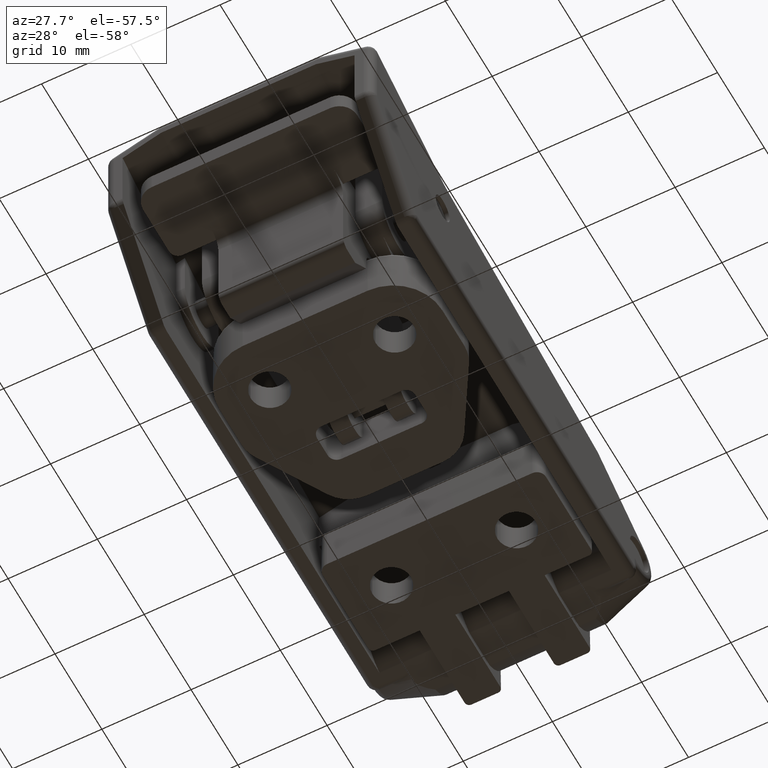
[diagram: clean part render]
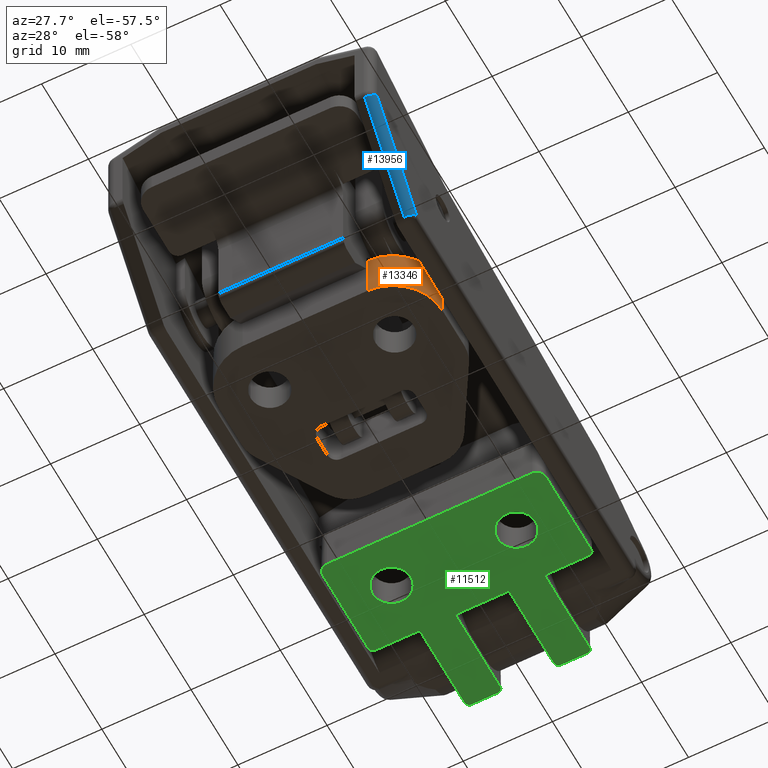
[diagram: same view with three faces highlighted in distinct colors, each labeled with its STEP entity id]
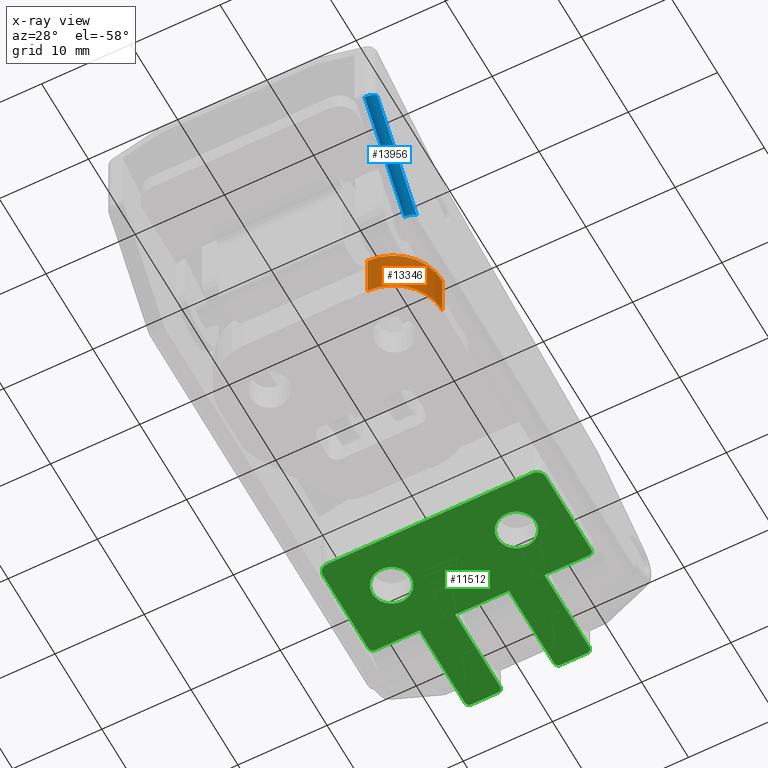
[diagram: x-ray of the same camera — body ghosted, the three highlighted faces saturated]
A machine part, auxiliary view with three faces highlighted in distinct colors.
The next image is the same camera in x-ray (body ghosted, the three faces saturated) — at least one of them is partly hidden behind the body in this view.
Their STEP definitions:

[orange] entity #13346 — the highlighted cylindrical surface (partial cylindrical patch) has radius 5.5 mm, axis along (0, 0, -1).
#119 = EDGE_CURVE ( 'NONE', #14050, #6010, #10177, .T. ) ;
#571 = CARTESIAN_POINT ( 'NONE',  ( 12.50000000000000000, -0.3000000000000103100, 5.500000000000000000 ) ) ;
#686 = VERTEX_POINT ( 'NONE', #571 ) ;
#701 = ORIENTED_EDGE ( 'NONE', *, *, #984, .F. ) ;
#984 = EDGE_CURVE ( 'NONE', #686, #6672, #5620, .T. ) ;
#1578 = DIRECTION ( 'NONE',  ( 0.0000000000000000000, 0.0000000000000000000, -1.000000000000000000 ) ) ;
#1637 = ORIENTED_EDGE ( 'NONE', *, *, #119, .F. ) ;
#1953 = DIRECTION ( 'NONE',  ( 0.0000000000000000000, -0.0000000000000000000, -1.000000000000000000 ) ) ;
#3030 = VECTOR ( 'NONE', #12783, 1000.000000000000000 ) ;
#3459 = AXIS2_PLACEMENT_3D ( 'NONE', #8492, #1953, #9587 ) ;
#3474 = DIRECTION ( 'NONE',  ( 0.0000000000000000000, -0.0000000000000000000, -1.000000000000000000 ) ) ;
#3886 = CIRCLE ( 'NONE', #3459, 5.500000000000000000 ) ;
#4950 = CARTESIAN_POINT ( 'NONE',  ( 7.000000000000000900, -0.3000000000000085900, 6.000000000000000000 ) ) ;
#5620 = LINE ( 'NONE', #10553, #3030 ) ;
#6010 = VERTEX_POINT ( 'NONE', #10549 ) ;
#6672 = VERTEX_POINT ( 'NONE', #12244 ) ;
#6880 = CYLINDRICAL_SURFACE ( 'NONE', #9129, 5.500000000000000000 ) ;
#7280 = VECTOR ( 'NONE', #11941, 1000.000000000000000 ) ;
#7551 = EDGE_CURVE ( 'NONE', #686, #6010, #3886, .T. ) ;
#8492 = CARTESIAN_POINT ( 'NONE',  ( 7.000000000000000900, -0.3000000000000085900, 5.500000000000000000 ) ) ;
#8782 = AXIS2_PLACEMENT_3D ( 'NONE', #10013, #3474, #11130 ) ;
#8966 = CARTESIAN_POINT ( 'NONE',  ( 6.999999999999993800, -5.800000000000008700, 0.0000000000000000000 ) ) ;
#9036 = EDGE_LOOP ( 'NONE', ( #701, #14033, #1637, #12879 ) ) ;
#9129 = AXIS2_PLACEMENT_3D ( 'NONE', #4950, #1578, #12606 ) ;
#9587 = DIRECTION ( 'NONE',  ( 1.000000000000000000, 0.0000000000000000000, 0.0000000000000000000 ) ) ;
#9708 = CARTESIAN_POINT ( 'NONE',  ( 7.000000000000000900, -5.800000000000008700, 6.000000000000000000 ) ) ;
#10013 = CARTESIAN_POINT ( 'NONE',  ( 7.000000000000000900, -0.3000000000000085900, 0.0000000000000000000 ) ) ;
#10177 = LINE ( 'NONE', #9708, #7280 ) ;
#10549 = CARTESIAN_POINT ( 'NONE',  ( 7.000000000000000900, -5.800000000000008700, 5.500000000000000000 ) ) ;
#10553 = CARTESIAN_POINT ( 'NONE',  ( 12.50000000000000000, -0.3000000000000103100, 6.000000000000000000 ) ) ;
#11130 = DIRECTION ( 'NONE',  ( 1.000000000000000000, 0.0000000000000000000, 0.0000000000000000000 ) ) ;
#11941 = DIRECTION ( 'NONE',  ( -0.0000000000000000000, -0.0000000000000000000, 1.000000000000000000 ) ) ;
#12156 = EDGE_CURVE ( 'NONE', #6672, #14050, #13791, .T. ) ;
#12244 = CARTESIAN_POINT ( 'NONE',  ( 12.50000000000000000, -0.3000000000000103100, 0.0000000000000000000 ) ) ;
#12606 = DIRECTION ( 'NONE',  ( -1.000000000000000000, 0.0000000000000000000, 0.0000000000000000000 ) ) ;
#12731 = FACE_OUTER_BOUND ( 'NONE', #9036, .T. ) ;
#12783 = DIRECTION ( 'NONE',  ( 0.0000000000000000000, 0.0000000000000000000, -1.000000000000000000 ) ) ;
#12879 = ORIENTED_EDGE ( 'NONE', *, *, #12156, .F. ) ;
#13346 = ADVANCED_FACE ( 'NONE', ( #12731 ), #6880, .T. ) ;
#13791 = CIRCLE ( 'NONE', #8782, 5.500000000000000000 ) ;
#14033 = ORIENTED_EDGE ( 'NONE', *, *, #7551, .T. ) ;
#14050 = VERTEX_POINT ( 'NONE', #8966 ) ;

[blue] entity #13956 — the highlighted cylindrical surface (edge-blend (fillet) strip) has radius 1 mm, axis along (0, 0.6332, -0.774).
#879 = LINE ( 'NONE', #10615, #6339 ) ;
#1518 = CIRCLE ( 'NONE', #12102, 1.000000000000000900 ) ;
#1649 = CIRCLE ( 'NONE', #12002, 1.000000000000000900 ) ;
#1650 = EDGE_LOOP ( 'NONE', ( #3426, #5442, #11429, #12541 ) ) ;
#2072 = CARTESIAN_POINT ( 'NONE',  ( 15.00000000000000000, -55.99999999988141000, 6.856963378191206700 ) ) ;
#2241 = DIRECTION ( 'NONE',  ( 0.0000000000000000000, 0.6332377902572574600, -0.7739572992033254600 ) ) ;
#2798 = CARTESIAN_POINT ( 'NONE',  ( 13.99999999999999800, -47.52612087227372200, -3.499999999996110200 ) ) ;
#3426 = ORIENTED_EDGE ( 'NONE', *, *, #5212, .T. ) ;
#3920 = DIRECTION ( 'NONE',  ( 0.0000000000000000000, 0.7739572992033267900, 0.6332377902572557900 ) ) ;
#3960 = EDGE_CURVE ( 'NONE', #12600, #14056, #879, .T. ) ;
#4517 = DIRECTION ( 'NONE',  ( -2.013902844497422000E-015, -0.6332377902572562400, 0.7739572992033262300 ) ) ;
#5212 = EDGE_CURVE ( 'NONE', #13895, #14056, #1518, .T. ) ;
#5442 = ORIENTED_EDGE ( 'NONE', *, *, #3960, .F. ) ;
#5508 = CYLINDRICAL_SURFACE ( 'NONE', #6131, 1.000000000000001600 ) ;
#5976 = CARTESIAN_POINT ( 'NONE',  ( 13.99999999999999800, -56.77395729908473500, 6.223725587933946800 ) ) ;
#6131 = AXIS2_PLACEMENT_3D ( 'NONE', #9827, #2241, #8725 ) ;
#6322 = CARTESIAN_POINT ( 'NONE',  ( 13.99999999999999800, -56.99999999988141800, 6.500000000018782300 ) ) ;
#6339 = VECTOR ( 'NONE', #12796, 999.9999999999998900 ) ;
#6825 = CARTESIAN_POINT ( 'NONE',  ( 15.00000000000000000, -47.52612087227372200, -3.499999999996110200 ) ) ;
#7602 = CARTESIAN_POINT ( 'NONE',  ( 13.99999999999999800, -48.30007817147705400, -4.133237790253367900 ) ) ;
#7949 = EDGE_CURVE ( 'NONE', #9994, #12600, #1649, .T. ) ;
#8725 = DIRECTION ( 'NONE',  ( 0.0000000000000000000, 0.7739572992033262300, 0.6332377902572562400 ) ) ;
#9170 = EDGE_CURVE ( 'NONE', #13895, #9994, #10673, .T. ) ;
#9827 = CARTESIAN_POINT ( 'NONE',  ( 13.99999999999999800, -47.22604270066602800, -3.866762209738853900 ) ) ;
#9994 = VERTEX_POINT ( 'NONE', #5976 ) ;
#10315 = VECTOR ( 'NONE', #13936, 999.9999999999998900 ) ;
#10445 = DIRECTION ( 'NONE',  ( -0.0000000000000000000, -0.6332377902572562400, 0.7739572992033262300 ) ) ;
#10615 = CARTESIAN_POINT ( 'NONE',  ( 15.00000000000000000, -47.22604270066602800, -3.866762209738852500 ) ) ;
#10673 = LINE ( 'NONE', #6322, #10315 ) ;
#11057 = CARTESIAN_POINT ( 'NONE',  ( 13.99999999999999800, -55.99999999988141000, 6.856963378191204100 ) ) ;
#11317 = FACE_OUTER_BOUND ( 'NONE', #1650, .T. ) ;
#11429 = ORIENTED_EDGE ( 'NONE', *, *, #7949, .F. ) ;
#12002 = AXIS2_PLACEMENT_3D ( 'NONE', #11057, #4517, #12173 ) ;
#12102 = AXIS2_PLACEMENT_3D ( 'NONE', #2798, #10445, #3920 ) ;
#12173 = DIRECTION ( 'NONE',  ( 0.0000000000000000000, -0.7739572992033267900, -0.6332377902572557900 ) ) ;
#12541 = ORIENTED_EDGE ( 'NONE', *, *, #9170, .F. ) ;
#12600 = VERTEX_POINT ( 'NONE', #2072 ) ;
#12796 = DIRECTION ( 'NONE',  ( -0.0000000000000000000, 0.6332377902572573500, -0.7739572992033253400 ) ) ;
#13895 = VERTEX_POINT ( 'NONE', #7602 ) ;
#13936 = DIRECTION ( 'NONE',  ( 0.0000000000000000000, -0.6332377902572573500, 0.7739572992033253400 ) ) ;
#13956 = ADVANCED_FACE ( 'NONE', ( #11317 ), #5508, .T. ) ;
#14056 = VERTEX_POINT ( 'NONE', #6825 ) ;

[green] entity #11512 — the highlighted planar face has unit normal (0, -0, 1).
#38 = ORIENTED_EDGE ( 'NONE', *, *, #9254, .F. ) ;
#57 = DIRECTION ( 'NONE',  ( -0.0000000000000000000, 1.548860246407863600E-016, -1.000000000000000000 ) ) ;
#231 = PLANE ( 'NONE',  #7886 ) ;
#328 = LINE ( 'NONE', #5274, #8679 ) ;
#570 = DIRECTION ( 'NONE',  ( 0.0000000000000000000, 1.000000000000000000, 2.454797371665294100E-016 ) ) ;
#615 = CARTESIAN_POINT ( 'NONE',  ( 3.207106781186547900, 16.10000000000000100, 1.564848052603321400E-015 ) ) ;
#764 = ORIENTED_EDGE ( 'NONE', *, *, #5066, .T. ) ;
#825 = LINE ( 'NONE', #12104, #12136 ) ;
#918 = LINE ( 'NONE', #976, #12239 ) ;
#976 = CARTESIAN_POINT ( 'NONE',  ( 12.50000000000000000, 6.000000000000000000, 0.0000000000000000000 ) ) ;
#1025 =( BOUNDED_CURVE ( )  B_SPLINE_CURVE ( 3, ( #6043, #12637, #615, #8246 ),
 .UNSPECIFIED., .F., .F. ) 
 B_SPLINE_CURVE_WITH_KNOTS ( ( 4, 4 ),
 ( 1.570796326794896600, 3.141592653589793100 ),
 .UNSPECIFIED. ) 
 CURVE ( )  GEOMETRIC_REPRESENTATION_ITEM ( )  RATIONAL_B_SPLINE_CURVE ( ( 1.000000000000000000, 0.8047378541243649400, 0.8047378541243649400, 1.000000000000000000 ) ) 
 REPRESENTATION_ITEM ( '' )  );
#1035 = VERTEX_POINT ( 'NONE', #9537 ) ;
#1045 = DIRECTION ( 'NONE',  ( 1.000000000000000000, 0.0000000000000000000, 0.0000000000000000000 ) ) ;
#1104 = CARTESIAN_POINT ( 'NONE',  ( -3.000000000000000000, 15.59990196078431200, 2.473243856205197300E-015 ) ) ;
#1315 = DIRECTION ( 'NONE',  ( 0.0000000000000000000, -1.548860246407863600E-016, 1.000000000000000000 ) ) ;
#1349 = CARTESIAN_POINT ( 'NONE',  ( -3.000000000000000000, 15.89285260964067000, 1.780097437394107200E-015 ) ) ;
#1354 = VECTOR ( 'NONE', #11232, 1000.000000000000000 ) ;
#1689 = CIRCLE ( 'NONE', #4518, 2.149999999999999000 ) ;
#1736 = CARTESIAN_POINT ( 'NONE',  ( -6.500000000000001800, 16.10000000000000100, 2.602085213965210600E-015 ) ) ;
#1777 = VERTEX_POINT ( 'NONE', #11606 ) ;
#1936 = CARTESIAN_POINT ( 'NONE',  ( -3.000000000000000000, 6.000000000000000000, 0.0000000000000000000 ) ) ;
#2016 = LINE ( 'NONE', #3269, #4605 ) ;
#2122 = CIRCLE ( 'NONE', #4760, 2.149999999999999000 ) ;
#2186 = CIRCLE ( 'NONE', #4831, 1.000000000000000000 ) ;
#2360 = ORIENTED_EDGE ( 'NONE', *, *, #5697, .T. ) ;
#2423 = ORIENTED_EDGE ( 'NONE', *, *, #9609, .F. ) ;
#2521 = VERTEX_POINT ( 'NONE', #10131 ) ;
#2637 = AXIS2_PLACEMENT_3D ( 'NONE', #6297, #13951, #7404 ) ;
#2660 = DIRECTION ( 'NONE',  ( -0.0000000000000000000, 0.0000000000000000000, 1.000000000000000000 ) ) ;
#2686 = DIRECTION ( 'NONE',  ( -0.0000000000000000000, 1.548860246407863600E-016, -1.000000000000000000 ) ) ;
#2689 = VECTOR ( 'NONE', #7820, 1000.000000000000000 ) ;
#2963 = EDGE_CURVE ( 'NONE', #3472, #1035, #1025, .T. ) ;
#3044 = DIRECTION ( 'NONE',  ( 0.0000000000000000000, 1.000000000000000000, 2.576321994024961000E-016 ) ) ;
#3223 = ORIENTED_EDGE ( 'NONE', *, *, #7931, .T. ) ;
#3266 = VERTEX_POINT ( 'NONE', #6981 ) ;
#3269 = CARTESIAN_POINT ( 'NONE',  ( 7.000000000000000000, 16.10000000000000100, 2.602085213965210600E-015 ) ) ;
#3321 = EDGE_CURVE ( 'NONE', #3266, #8797, #11882, .T. ) ;
#3329 = DIRECTION ( 'NONE',  ( -0.0000000000000000000, 1.548860246407863600E-016, -1.000000000000000000 ) ) ;
#3339 = CARTESIAN_POINT ( 'NONE',  ( 6.500000000000000900, 16.10000000000000100, 2.602085213965210600E-015 ) ) ;
#3414 = EDGE_CURVE ( 'NONE', #3266, #4363, #5375, .T. ) ;
#3442 = ORIENTED_EDGE ( 'NONE', *, *, #5818, .F. ) ;
#3472 = VERTEX_POINT ( 'NONE', #11780 ) ;
#3481 = ORIENTED_EDGE ( 'NONE', *, *, #6791, .T. ) ;
#3599 = EDGE_CURVE ( 'NONE', #8616, #4360, #5338, .T. ) ;
#3712 = ORIENTED_EDGE ( 'NONE', *, *, #7644, .T. ) ;
#3723 = CARTESIAN_POINT ( 'NONE',  ( 3.000000000000000000, 6.000000000000000000, 0.0000000000000000000 ) ) ;
#3937 = DIRECTION ( 'NONE',  ( -0.0000000000000000000, -0.0000000000000000000, -1.000000000000000000 ) ) ;
#3974 = CARTESIAN_POINT ( 'NONE',  ( 7.000000000000000000, 6.000000000000000000, 0.0000000000000000000 ) ) ;
#3983 = DIRECTION ( 'NONE',  ( -1.000000000000000000, -0.0000000000000000000, -0.0000000000000000000 ) ) ;
#4123 = VERTEX_POINT ( 'NONE', #9869 ) ;
#4155 = VERTEX_POINT ( 'NONE', #11044 ) ;
#4165 = EDGE_LOOP ( 'NONE', ( #13166, #13901, #8944, #13037, #4276, #9155, #10675, #6034, #764, #2360, #7806, #3442, #3223, #8855, #12558, #10136, #38, #6181, #13288, #3481 ) ) ;
#4249 = CARTESIAN_POINT ( 'NONE',  ( -7.000000000000000000, 15.59990196078431300, 2.479321278741047800E-015 ) ) ;
#4276 = ORIENTED_EDGE ( 'NONE', *, *, #10044, .T. ) ;
#4360 = VERTEX_POINT ( 'NONE', #13517 ) ;
#4363 = VERTEX_POINT ( 'NONE', #10253 ) ;
#4376 = VECTOR ( 'NONE', #570, 1000.000000000000000 ) ;
#4377 = VERTEX_POINT ( 'NONE', #3723 ) ;
#4518 = AXIS2_PLACEMENT_3D ( 'NONE', #9195, #2660, #10301 ) ;
#4605 = VECTOR ( 'NONE', #9761, 1000.000000000000000 ) ;
#4760 = AXIS2_PLACEMENT_3D ( 'NONE', #10466, #3937, #11584 ) ;
#4831 = AXIS2_PLACEMENT_3D ( 'NONE', #9223, #2686, #10330 ) ;
#4899 =( BOUNDED_CURVE ( )  B_SPLINE_CURVE ( 3, ( #3339, #5549, #13203, #6635 ),
 .UNSPECIFIED., .F., .F. ) 
 B_SPLINE_CURVE_WITH_KNOTS ( ( 4, 4 ),
 ( 0.0000000000000000000, 1.570796326794896600 ),
 .UNSPECIFIED. ) 
 CURVE ( )  GEOMETRIC_REPRESENTATION_ITEM ( )  RATIONAL_B_SPLINE_CURVE ( ( 1.000000000000000000, 0.8047378541243649400, 0.8047378541243649400, 1.000000000000000000 ) ) 
 REPRESENTATION_ITEM ( '' )  );
#5023 = CARTESIAN_POINT ( 'NONE',  ( -12.50000000000000000, -4.200000000000000200, -1.579837451336020900E-015 ) ) ;
#5066 = EDGE_CURVE ( 'NONE', #12530, #4377, #6477, .T. ) ;
#5093 = CIRCLE ( 'NONE', #10053, 2.149999999999999000 ) ;
#5274 = CARTESIAN_POINT ( 'NONE',  ( -3.000000000000000000, 6.000000000000000000, 0.0000000000000000000 ) ) ;
#5338 = LINE ( 'NONE', #6492, #8235 ) ;
#5364 = VERTEX_POINT ( 'NONE', #5782 ) ;
#5375 = LINE ( 'NONE', #7217, #7582 ) ;
#5549 = CARTESIAN_POINT ( 'NONE',  ( 6.792893218813452100, 16.10000000000000100, 1.812181673201576500E-015 ) ) ;
#5697 = EDGE_CURVE ( 'NONE', #4377, #3472, #12143, .T. ) ;
#5704 = CARTESIAN_POINT ( 'NONE',  ( -3.207106781186547500, 16.10000000000000100, 1.812181673201576500E-015 ) ) ;
#5782 = CARTESIAN_POINT ( 'NONE',  ( -3.500000000000000400, 16.10000000000000100, 2.602085213965210600E-015 ) ) ;
#5811 = DIRECTION ( 'NONE',  ( -0.0000000000000000000, 1.548860246407863600E-016, -1.000000000000000000 ) ) ;
#5818 = EDGE_CURVE ( 'NONE', #9435, #1035, #2016, .T. ) ;
#5935 = FACE_BOUND ( 'NONE', #10846, .T. ) ;
#6034 = ORIENTED_EDGE ( 'NONE', *, *, #10826, .F. ) ;
#6043 = CARTESIAN_POINT ( 'NONE',  ( 3.000000000000000000, 15.59990196078431300, 2.473243856205197700E-015 ) ) ;
#6071 = CARTESIAN_POINT ( 'NONE',  ( -7.000000000000000900, 15.89285260964067000, 1.532763816795851500E-015 ) ) ;
#6113 = AXIS2_PLACEMENT_3D ( 'NONE', #12391, #5811, #13468 ) ;
#6181 = ORIENTED_EDGE ( 'NONE', *, *, #10659, .T. ) ;
#6286 = LINE ( 'NONE', #11125, #2689 ) ;
#6296 = DIRECTION ( 'NONE',  ( 0.0000000000000000000, 1.000000000000000000, 2.576321994024961000E-016 ) ) ;
#6297 = CARTESIAN_POINT ( 'NONE',  ( -6.999999999999999100, 0.0000000000000000000, 0.0000000000000000000 ) ) ;
#6371 = VERTEX_POINT ( 'NONE', #13365 ) ;
#6477 = LINE ( 'NONE', #10110, #1354 ) ;
#6492 = CARTESIAN_POINT ( 'NONE',  ( -12.50000000000000000, 6.000000000000000000, 0.0000000000000000000 ) ) ;
#6562 = CARTESIAN_POINT ( 'NONE',  ( 9.149999999999998600, 0.0000000000000000000, 0.0000000000000000000 ) ) ;
#6571 = CARTESIAN_POINT ( 'NONE',  ( -12.00000000000000000, 5.500000000000000000, 0.0000000000000000000 ) ) ;
#6617 = CARTESIAN_POINT ( 'NONE',  ( 12.50000000000000000, 6.000000000000000000, 0.0000000000000000000 ) ) ;
#6620 = ORIENTED_EDGE ( 'NONE', *, *, #11187, .T. ) ;
#6635 = CARTESIAN_POINT ( 'NONE',  ( 7.000000000000000000, 15.59990196078431200, 2.479321278741047400E-015 ) ) ;
#6791 = EDGE_CURVE ( 'NONE', #4123, #8616, #2186, .T. ) ;
#6800 = VERTEX_POINT ( 'NONE', #8132 ) ;
#6898 = EDGE_LOOP ( 'NONE', ( #6620, #3712 ) ) ;
#6981 = CARTESIAN_POINT ( 'NONE',  ( -6.999999999999999100, 6.000000000000000000, 0.0000000000000000000 ) ) ;
#7106 = CARTESIAN_POINT ( 'NONE',  ( 7.000000000000000000, 5.500000000000003600, 0.0000000000000000000 ) ) ;
#7217 = CARTESIAN_POINT ( 'NONE',  ( 12.50000000000000000, 6.000000000000000000, 0.0000000000000000000 ) ) ;
#7266 = LINE ( 'NONE', #7106, #4376 ) ;
#7404 = DIRECTION ( 'NONE',  ( -1.000000000000000000, 0.0000000000000000000, 0.0000000000000000000 ) ) ;
#7482 = VERTEX_POINT ( 'NONE', #3974 ) ;
#7582 = VECTOR ( 'NONE', #3983, 1000.000000000000000 ) ;
#7588 = DIRECTION ( 'NONE',  ( -0.0000000000000000000, 0.0000000000000000000, 1.000000000000000000 ) ) ;
#7644 = EDGE_CURVE ( 'NONE', #1777, #8847, #5093, .T. ) ;
#7675 = CARTESIAN_POINT ( 'NONE',  ( 11.50000000000000000, -5.200000000000000200, -1.734723475976807100E-015 ) ) ;
#7686 = DIRECTION ( 'NONE',  ( 0.0000000000000000000, -1.000000000000000000, -1.548860246407862100E-016 ) ) ;
#7724 = DIRECTION ( 'NONE',  ( -1.000000000000000000, -0.0000000000000000000, -0.0000000000000000000 ) ) ;
#7729 = VERTEX_POINT ( 'NONE', #12058 ) ;
#7806 = ORIENTED_EDGE ( 'NONE', *, *, #2963, .T. ) ;
#7820 = DIRECTION ( 'NONE',  ( -1.000000000000000000, -0.0000000000000000000, -0.0000000000000000000 ) ) ;
#7864 = CARTESIAN_POINT ( 'NONE',  ( 12.50000000000000000, 6.000000000000000000, 0.0000000000000000000 ) ) ;
#7886 = AXIS2_PLACEMENT_3D ( 'NONE', #7864, #1315, #8947 ) ;
#7888 = EDGE_CURVE ( 'NONE', #4155, #9136, #8135, .T. ) ;
#7931 = EDGE_CURVE ( 'NONE', #9435, #6800, #4899, .T. ) ;
#8127 = CARTESIAN_POINT ( 'NONE',  ( -7.000000000000000000, 5.500000000000003600, 0.0000000000000000000 ) ) ;
#8132 = CARTESIAN_POINT ( 'NONE',  ( 7.000000000000000000, 15.59990196078431200, 2.479321278741047400E-015 ) ) ;
#8135 = CIRCLE ( 'NONE', #6113, 0.5000000000000004400 ) ;
#8235 = VECTOR ( 'NONE', #10857, 1000.000000000000000 ) ;
#8246 = CARTESIAN_POINT ( 'NONE',  ( 3.500000000000000000, 16.10000000000000100, 2.602085213965210600E-015 ) ) ;
#8270 = CARTESIAN_POINT ( 'NONE',  ( -6.792893218813452100, 16.10000000000000100, 1.564848052603321400E-015 ) ) ;
#8283 = EDGE_CURVE ( 'NONE', #7729, #6371, #8462, .T. ) ;
#8286 = VECTOR ( 'NONE', #13237, 1000.000000000000000 ) ;
#8462 = CIRCLE ( 'NONE', #2637, 2.149999999999999000 ) ;
#8488 = EDGE_CURVE ( 'NONE', #4155, #7482, #11208, .T. ) ;
#8520 = CIRCLE ( 'NONE', #13189, 1.000000000000000000 ) ;
#8565 = EDGE_CURVE ( 'NONE', #7482, #6800, #7266, .T. ) ;
#8593 = VECTOR ( 'NONE', #9264, 1000.000000000000000 ) ;
#8616 = VERTEX_POINT ( 'NONE', #5023 ) ;
#8679 = VECTOR ( 'NONE', #3044, 1000.000000000000000 ) ;
#8758 = AXIS2_PLACEMENT_3D ( 'NONE', #6571, #57, #7686 ) ;
#8797 = VERTEX_POINT ( 'NONE', #4249 ) ;
#8847 = VERTEX_POINT ( 'NONE', #6562 ) ;
#8855 = ORIENTED_EDGE ( 'NONE', *, *, #8565, .F. ) ;
#8944 = ORIENTED_EDGE ( 'NONE', *, *, #3414, .F. ) ;
#8947 = DIRECTION ( 'NONE',  ( 0.0000000000000000000, -1.000000000000000000, -1.548860246407863600E-016 ) ) ;
#8984 = CARTESIAN_POINT ( 'NONE',  ( -3.000000000000000000, 15.59990196078431200, 2.473243856205197300E-015 ) ) ;
#9136 = VERTEX_POINT ( 'NONE', #12861 ) ;
#9155 = ORIENTED_EDGE ( 'NONE', *, *, #11434, .F. ) ;
#9195 = CARTESIAN_POINT ( 'NONE',  ( 6.999999999999999100, 0.0000000000000000000, 0.0000000000000000000 ) ) ;
#9223 = CARTESIAN_POINT ( 'NONE',  ( -11.50000000000000000, -4.200000000000000200, -1.734723475976807100E-015 ) ) ;
#9254 = EDGE_CURVE ( 'NONE', #2521, #9136, #918, .T. ) ;
#9264 = DIRECTION ( 'NONE',  ( 0.0000000000000000000, 1.000000000000000000, 2.454797371665294100E-016 ) ) ;
#9422 = EDGE_CURVE ( 'NONE', #5364, #10221, #13129, .T. ) ;
#9435 = VERTEX_POINT ( 'NONE', #12333 ) ;
#9537 = CARTESIAN_POINT ( 'NONE',  ( 3.500000000000000000, 16.10000000000000100, 2.602085213965210600E-015 ) ) ;
#9609 = EDGE_CURVE ( 'NONE', #6371, #7729, #2122, .T. ) ;
#9761 = DIRECTION ( 'NONE',  ( -1.000000000000000000, -0.0000000000000000000, -0.0000000000000000000 ) ) ;
#9783 = VERTEX_POINT ( 'NONE', #7675 ) ;
#9867 = CARTESIAN_POINT ( 'NONE',  ( 11.50000000000000000, -4.200000000000000200, -1.579837451336020900E-015 ) ) ;
#9869 = CARTESIAN_POINT ( 'NONE',  ( -11.50000000000000000, -5.200000000000000200, -1.734723475976807100E-015 ) ) ;
#10044 = EDGE_CURVE ( 'NONE', #8797, #11547, #12703, .T. ) ;
#10053 = AXIS2_PLACEMENT_3D ( 'NONE', #14140, #7588, #1045 ) ;
#10110 = CARTESIAN_POINT ( 'NONE',  ( -3.000000000000000000, 6.000000000000000000, 0.0000000000000000000 ) ) ;
#10131 = CARTESIAN_POINT ( 'NONE',  ( 12.50000000000000000, -4.200000000000000200, -1.579837451336020900E-015 ) ) ;
#10136 = ORIENTED_EDGE ( 'NONE', *, *, #7888, .T. ) ;
#10221 = VERTEX_POINT ( 'NONE', #1104 ) ;
#10253 = CARTESIAN_POINT ( 'NONE',  ( -12.00000000000000000, 6.000000000000000000, 0.0000000000000000000 ) ) ;
#10301 = DIRECTION ( 'NONE',  ( 1.000000000000000000, 0.0000000000000000000, 0.0000000000000000000 ) ) ;
#10330 = DIRECTION ( 'NONE',  ( 0.0000000000000000000, -1.000000000000000000, -1.548860246407861900E-016 ) ) ;
#10466 = CARTESIAN_POINT ( 'NONE',  ( -6.999999999999999100, 0.0000000000000000000, 0.0000000000000000000 ) ) ;
#10653 = EDGE_CURVE ( 'NONE', #4360, #4363, #11115, .T. ) ;
#10659 = EDGE_CURVE ( 'NONE', #2521, #9783, #8520, .T. ) ;
#10675 = ORIENTED_EDGE ( 'NONE', *, *, #9422, .T. ) ;
#10699 = CARTESIAN_POINT ( 'NONE',  ( 3.000000000000000000, 6.000000000000000000, 0.0000000000000000000 ) ) ;
#10825 = DIRECTION ( 'NONE',  ( -0.0000000000000000000, 1.000000000000000000, 1.548860246407863600E-016 ) ) ;
#10826 = EDGE_CURVE ( 'NONE', #12530, #10221, #328, .T. ) ;
#10846 = EDGE_LOOP ( 'NONE', ( #13536, #2423 ) ) ;
#10857 = DIRECTION ( 'NONE',  ( -0.0000000000000000000, 1.000000000000000000, 1.548860246407863600E-016 ) ) ;
#10994 = DIRECTION ( 'NONE',  ( 0.0000000000000000000, -1.000000000000000000, -1.548860246407861900E-016 ) ) ;
#11044 = CARTESIAN_POINT ( 'NONE',  ( 12.00000000000000000, 6.000000000000000000, 0.0000000000000000000 ) ) ;
#11115 = CIRCLE ( 'NONE', #8758, 0.5000000000000004400 ) ;
#11125 = CARTESIAN_POINT ( 'NONE',  ( 12.50000000000000000, -5.200000000000000200, -1.734723475976807100E-015 ) ) ;
#11169 = CARTESIAN_POINT ( 'NONE',  ( -6.500000000000001800, 16.10000000000000100, 2.602085213965210600E-015 ) ) ;
#11187 = EDGE_CURVE ( 'NONE', #8847, #1777, #1689, .T. ) ;
#11208 = LINE ( 'NONE', #6617, #8286 ) ;
#11232 = DIRECTION ( 'NONE',  ( 1.000000000000000000, -0.0000000000000000000, -0.0000000000000000000 ) ) ;
#11434 = EDGE_CURVE ( 'NONE', #5364, #11547, #825, .T. ) ;
#11504 = EDGE_CURVE ( 'NONE', #9783, #4123, #6286, .T. ) ;
#11512 = ADVANCED_FACE ( 'NONE', ( #13986, #5935, #11781 ), #231, .F. ) ;
#11547 = VERTEX_POINT ( 'NONE', #11169 ) ;
#11584 = DIRECTION ( 'NONE',  ( -1.000000000000000000, 0.0000000000000000000, 0.0000000000000000000 ) ) ;
#11606 = CARTESIAN_POINT ( 'NONE',  ( 4.850000000000000500, -2.632990618166809200E-016, 0.0000000000000000000 ) ) ;
#11780 = CARTESIAN_POINT ( 'NONE',  ( 3.000000000000000000, 15.59990196078431300, 2.473243856205197700E-015 ) ) ;
#11781 = FACE_OUTER_BOUND ( 'NONE', #4165, .T. ) ;
#11787 = VECTOR ( 'NONE', #6296, 1000.000000000000000 ) ;
#11882 = LINE ( 'NONE', #8127, #8593 ) ;
#12058 = CARTESIAN_POINT ( 'NONE',  ( -9.149999999999998600, 0.0000000000000000000, 0.0000000000000000000 ) ) ;
#12104 = CARTESIAN_POINT ( 'NONE',  ( 7.000000000000000000, 16.10000000000000100, 2.602085213965210600E-015 ) ) ;
#12136 = VECTOR ( 'NONE', #7724, 1000.000000000000000 ) ;
#12143 = LINE ( 'NONE', #10699, #11787 ) ;
#12239 = VECTOR ( 'NONE', #10825, 1000.000000000000000 ) ;
#12333 = CARTESIAN_POINT ( 'NONE',  ( 6.500000000000000900, 16.10000000000000100, 2.602085213965210600E-015 ) ) ;
#12391 = CARTESIAN_POINT ( 'NONE',  ( 12.00000000000000000, 5.500000000000000000, -7.744301232039325300E-017 ) ) ;
#12530 = VERTEX_POINT ( 'NONE', #1936 ) ;
#12558 = ORIENTED_EDGE ( 'NONE', *, *, #8488, .F. ) ;
#12637 = CARTESIAN_POINT ( 'NONE',  ( 3.000000000000000000, 15.89285260964067000, 1.532763816795851500E-015 ) ) ;
#12703 =( BOUNDED_CURVE ( )  B_SPLINE_CURVE ( 3, ( #13730, #6071, #8270, #1736 ),
 .UNSPECIFIED., .F., .F. ) 
 B_SPLINE_CURVE_WITH_KNOTS ( ( 4, 4 ),
 ( 1.570796326794896600, 3.141592653589793100 ),
 .UNSPECIFIED. ) 
 CURVE ( )  GEOMETRIC_REPRESENTATION_ITEM ( )  RATIONAL_B_SPLINE_CURVE ( ( 1.000000000000000000, 0.8047378541243649400, 0.8047378541243649400, 1.000000000000000000 ) ) 
 REPRESENTATION_ITEM ( '' )  );
#12861 = CARTESIAN_POINT ( 'NONE',  ( 12.50000000000000000, 5.500000000000000000, -7.744301232039325300E-017 ) ) ;
#13037 = ORIENTED_EDGE ( 'NONE', *, *, #3321, .T. ) ;
#13129 =( BOUNDED_CURVE ( )  B_SPLINE_CURVE ( 3, ( #13354, #5704, #1349, #8984 ),
 .UNSPECIFIED., .F., .F. ) 
 B_SPLINE_CURVE_WITH_KNOTS ( ( 4, 4 ),
 ( -8.881784197001252300E-016, 1.570796326794896600 ),
 .UNSPECIFIED. ) 
 CURVE ( )  GEOMETRIC_REPRESENTATION_ITEM ( )  RATIONAL_B_SPLINE_CURVE ( ( 1.000000000000000000, 0.8047378541243648300, 0.8047378541243648300, 1.000000000000000000 ) ) 
 REPRESENTATION_ITEM ( '' )  );
#13166 = ORIENTED_EDGE ( 'NONE', *, *, #3599, .T. ) ;
#13189 = AXIS2_PLACEMENT_3D ( 'NONE', #9867, #3329, #10994 ) ;
#13203 = CARTESIAN_POINT ( 'NONE',  ( 7.000000000000000900, 15.89285260964067000, 1.780097437394107200E-015 ) ) ;
#13237 = DIRECTION ( 'NONE',  ( -1.000000000000000000, -0.0000000000000000000, -0.0000000000000000000 ) ) ;
#13288 = ORIENTED_EDGE ( 'NONE', *, *, #11504, .T. ) ;
#13354 = CARTESIAN_POINT ( 'NONE',  ( -3.500000000000000400, 16.10000000000000100, 2.602085213965210600E-015 ) ) ;
#13365 = CARTESIAN_POINT ( 'NONE',  ( -4.850000000000000500, 2.632990618166809200E-016, 0.0000000000000000000 ) ) ;
#13468 = DIRECTION ( 'NONE',  ( 0.0000000000000000000, -1.000000000000000000, -1.548860246407862100E-016 ) ) ;
#13517 = CARTESIAN_POINT ( 'NONE',  ( -12.50000000000000000, 5.500000000000000000, -7.744301232039325300E-017 ) ) ;
#13536 = ORIENTED_EDGE ( 'NONE', *, *, #8283, .F. ) ;
#13730 = CARTESIAN_POINT ( 'NONE',  ( -7.000000000000000000, 15.59990196078431300, 2.479321278741047800E-015 ) ) ;
#13901 = ORIENTED_EDGE ( 'NONE', *, *, #10653, .T. ) ;
#13951 = DIRECTION ( 'NONE',  ( -0.0000000000000000000, -0.0000000000000000000, -1.000000000000000000 ) ) ;
#13986 = FACE_BOUND ( 'NONE', #6898, .T. ) ;
#14140 = CARTESIAN_POINT ( 'NONE',  ( 6.999999999999999100, 0.0000000000000000000, 0.0000000000000000000 ) ) ;